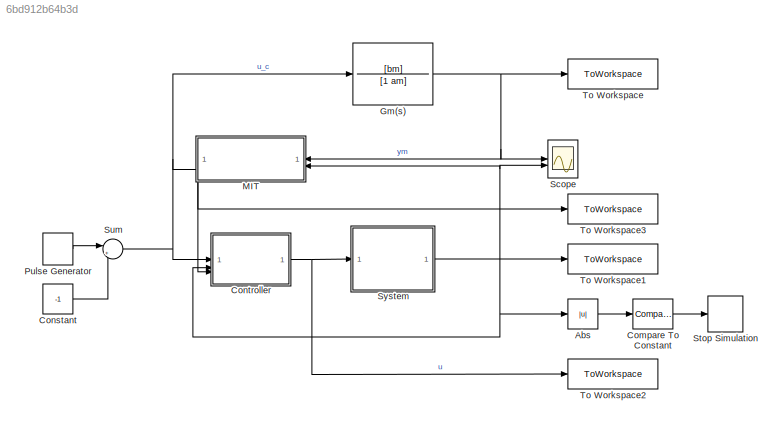
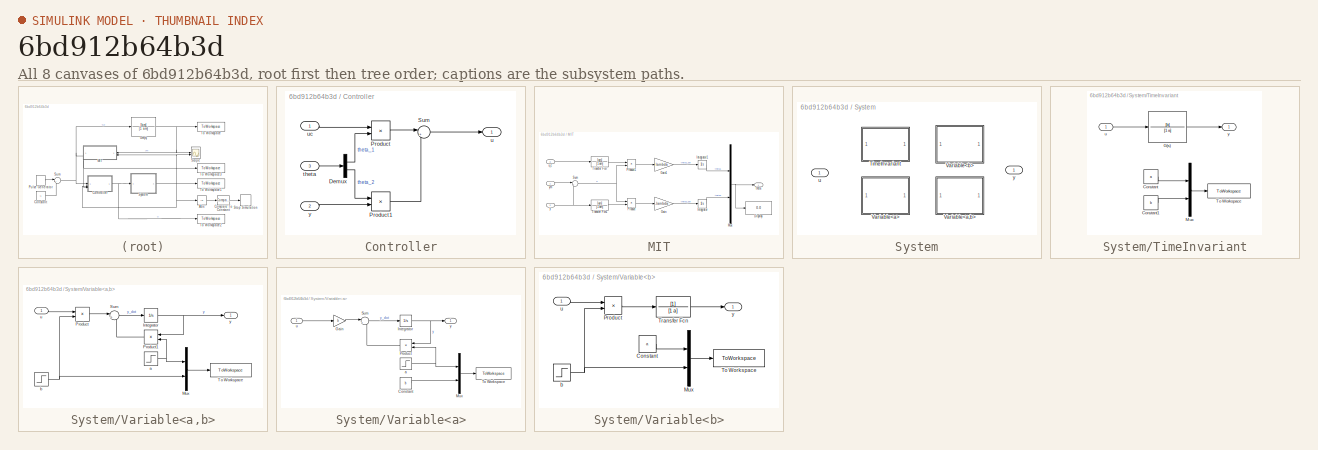
[diagram: thumbnail index - all 8 canvases of the model, root first then tree order]
MODEL slx_6bd912b64b3d
KIND model
CONFIG AbsTol = auto
CONFIG EnableMultiTasking = off
CONFIG FixedStep = sample_time
CONFIG MaxStep = auto
CONFIG MinStep = auto
CONFIG RelTol = 1e-3
CONFIG SampleTimeConstraint = Unconstrained
CONFIG SolverName = FixedStepAuto
CONFIG StartTime = start_time
CONFIG StopTime = stop_time
BLOCK [Abs] Abs
  SaturateOnIntegerOverflow = off
BLOCK [Reference] Compare To Constant  REF=simulink/Logic and Bit
Operations/Compare
To Constant
  SourceBlock = simulink/Logic and Bit\nOperations/Compare\nTo Constant
  SourceType = Compare To Constant
BLOCK [Constant] Constant
  Value = -1
BLOCK [SubSystem] Controller
  PortSchema = {"entries":[{"content":{"sides":[{"content":{"connectorIds":["In1","In2"]},"type":"ConnectorPlacement.EquallySpacedRectSide","uuid":"d022c748-101c-4660-a3ab-3ab175440250"},{"content":{"connectorIds":["Out1"],"side":"RIGHT"},"type":"ConnectorPlacement.EquallySpacedRectSide","uuid":"095f090d-91cf-42c9-9b75-572471a2012a"},{"content":{"connectorIds":["In3"],"side":"TOP"},"type":"ConnectorPlacement.Equ...<+251ch>
BLOCK [Demux] Controller/Demux
  Outputs = 2
BLOCK [Product] Controller/Product
BLOCK [Product] Controller/Product1
BLOCK [Sum] Controller/Sum
  Inputs = |+-
BLOCK [Inport] Controller/theta
  Port = 3
BLOCK [Outport] Controller/u
BLOCK [Inport] Controller/uc
BLOCK [Inport] Controller/y
  Port = 2
BLOCK [TransferFcn] Gm(s)
  Denominator = [1 am]
  Numerator = [bm]
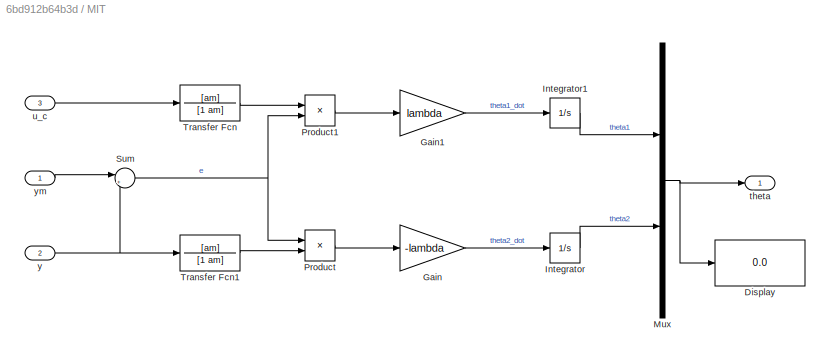
BLOCK [SubSystem] MIT
  NameLocation = top
  PortSchema = {"entries":[{"content":{"sides":[{"content":{"connectorIds":["In1","In2"]},"type":"ConnectorPlacement.EquallySpacedRectSide","uuid":"b0e139f4-a3e5-4429-8b9f-fb5f46f8f8e3"},{"content":{"connectorIds":["In3"],"side":"RIGHT"},"type":"ConnectorPlacement.EquallySpacedRectSide","uuid":"e3848565-b04e-4aec-b58f-f857d7acf1b5"},{"content":{"side":"TOP"},"type":"ConnectorPlacement.EquallySpacedRectSide","uui...<+377ch>
BLOCK [Display] MIT/Display
  Decimation = 1
BLOCK [Gain] MIT/Gain
  Gain = -lambda
BLOCK [Gain] MIT/Gain1
  Gain = lambda
BLOCK [Integrator] MIT/Integrator
BLOCK [Integrator] MIT/Integrator1
BLOCK [Mux] MIT/Mux
  DisplayOption = bar
  Inputs = 2
BLOCK [Product] MIT/Product
BLOCK [Product] MIT/Product1
BLOCK [Sum] MIT/Sum
  Inputs = |+-
BLOCK [TransferFcn] MIT/Transfer Fcn
  Denominator = [1 am]
  Numerator = [am]
BLOCK [TransferFcn] MIT/Transfer Fcn1
  Denominator = [1 am]
  Numerator = [am]
BLOCK [Outport] MIT/theta
BLOCK [Inport] MIT/u_c
  Port = 3
BLOCK [Inport] MIT/y
  Port = 2
BLOCK [Inport] MIT/ym
BLOCK [DiscretePulseGenerator] Pulse Generator
  Amplitude = 2
  Period = 20
  PulseType = Time based
  PulseWidth = 50
BLOCK [Scope] Scope
  Floating = off
  NumInputPorts = 2
  ScopeSpecificationString = Simulink.scopes.TimeScopeBlockCfg('CurrentConfiguration', extmgr.ConfigurationSet(extmgr.Configuration('Core','General UI',true),extmgr.Configuration('Core','Source UI',true),extmgr.Configuration('Sources','WiredSimulink',true),extmgr.Configuration('Visuals','Time Domain',true,'SerializedDisplays',{struct('MinYLimReal','-1.25','MaxYLimReal','1.25','YLabelReal','','MinYLimMag','0.00000','MaxYLimMag...<+1359ch>
BLOCK [Stop] Stop Simulation
BLOCK [Sum] Sum
  Inputs = |++
BLOCK [SubSystem] System
  LabelModeActiveChoice = Invariant
  Variant = on
  VariantControl = Choice
  VariantControlMode = label
BLOCK [SubSystem] System/TimeInvariant
  VariantControl = Invariant
BLOCK [Constant] System/TimeInvariant/Constant
  Value = a
BLOCK [Constant] System/TimeInvariant/Constant1
  Value = b
BLOCK [TransferFcn] System/TimeInvariant/G(s)
  Denominator = [1 a]
  Numerator = [b]
BLOCK [Mux] System/TimeInvariant/Mux
  DisplayOption = bar
  Inputs = 2
BLOCK [ToWorkspace] System/TimeInvariant/To Workspace
  FixptAsFi = on
  MaxDataPoints = inf
  SampleTime = -1
  SaveFormat = Timeseries
  VariableName = Param
BLOCK [Inport] System/TimeInvariant/u
BLOCK [Outport] System/TimeInvariant/y
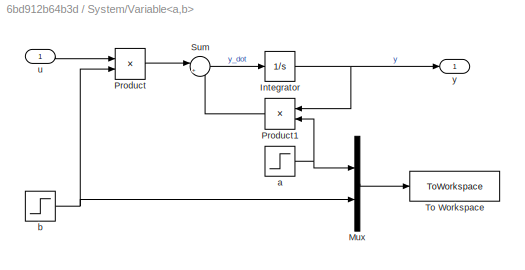
BLOCK [SubSystem] System/Variable<a,b>
  VariantControl = Variable_a_b
BLOCK [Integrator] System/Variable<a,b>/Integrator
BLOCK [Mux] System/Variable<a,b>/Mux
  DisplayOption = bar
  Inputs = 2
BLOCK [Product] System/Variable<a,b>/Product
BLOCK [Product] System/Variable<a,b>/Product1
  NameLocation = top
BLOCK [Sum] System/Variable<a,b>/Sum
  Inputs = |+-
BLOCK [ToWorkspace] System/Variable<a,b>/To Workspace
  FixptAsFi = on
  MaxDataPoints = inf
  SampleTime = -1
  SaveFormat = Timeseries
  VariableName = Param
BLOCK [Step] System/Variable<a,b>/a
  After = 2
  Before = 1
  SampleTime = 0
  Time = stop_time/2
BLOCK [Step] System/Variable<a,b>/b
  After = -0.5
  Before = 0.5
  SampleTime = 0
  Time = stop_time/2
BLOCK [Inport] System/Variable<a,b>/u
BLOCK [Outport] System/Variable<a,b>/y
BLOCK [SubSystem] System/Variable<a>
  VariantControl = Variable_a
BLOCK [Constant] System/Variable<a>/Constant
  Value = b
BLOCK [Gain] System/Variable<a>/Gain
  Gain = b
BLOCK [Integrator] System/Variable<a>/Integrator
BLOCK [Mux] System/Variable<a>/Mux
  DisplayOption = bar
  Inputs = 2
BLOCK [Product] System/Variable<a>/Product
  NameLocation = top
BLOCK [Sum] System/Variable<a>/Sum
  Inputs = |+-
BLOCK [ToWorkspace] System/Variable<a>/To Workspace
  FixptAsFi = on
  MaxDataPoints = inf
  SampleTime = -1
  SaveFormat = Timeseries
  VariableName = Param
BLOCK [Step] System/Variable<a>/a
  After = 2
  Before = 1
  SampleTime = 0
  Time = stop_time/2
BLOCK [Inport] System/Variable<a>/u
BLOCK [Outport] System/Variable<a>/y
BLOCK [SubSystem] System/Variable<b>
  VariantControl = Variable_b
BLOCK [Constant] System/Variable<b>/Constant
  Value = a
BLOCK [Mux] System/Variable<b>/Mux
  DisplayOption = bar
  Inputs = 2
BLOCK [Product] System/Variable<b>/Product
BLOCK [ToWorkspace] System/Variable<b>/To Workspace
  FixptAsFi = on
  MaxDataPoints = inf
  SampleTime = -1
  SaveFormat = Timeseries
  VariableName = Param
BLOCK [TransferFcn] System/Variable<b>/Transfer Fcn
  Denominator = [1 a]
BLOCK [Step] System/Variable<b>/b
  After = -0.5
  Before = 0.5
  SampleTime = 0
  Time = stop_time/2
BLOCK [Inport] System/Variable<b>/u
BLOCK [Outport] System/Variable<b>/y
BLOCK [Inport] System/u
BLOCK [Outport] System/y
BLOCK [ToWorkspace] To Workspace
  FixptAsFi = on
  MaxDataPoints = inf
  SampleTime = -1
  SaveFormat = Timeseries
  VariableName = Ym
BLOCK [ToWorkspace] To Workspace1
  FixptAsFi = on
  MaxDataPoints = inf
  SampleTime = -1
  SaveFormat = Timeseries
  VariableName = Y
BLOCK [ToWorkspace] To Workspace2
  FixptAsFi = on
  MaxDataPoints = inf
  SampleTime = -1
  SaveFormat = Timeseries
  VariableName = U
BLOCK [ToWorkspace] To Workspace3
  FixptAsFi = on
  MaxDataPoints = inf
  SampleTime = -1
  SaveFormat = Timeseries
  VariableName = Theta
LINE Abs:1 -> Compare To Constant:1
LINE Compare To Constant:1 -> Stop Simulation:1
LINE Constant:1 -> Sum:2
LINE Controller/Demux:1 -> Controller/Product:2
LINE Controller/Demux:2 -> Controller/Product1:1
LINE Controller/Product1:1 -> Controller/Sum:2
LINE Controller/Product:1 -> Controller/Sum:1
LINE Controller/Sum:1 -> Controller/u:1
LINE Controller/theta:1 -> Controller/Demux:1
LINE Controller/uc:1 -> Controller/Product:1
LINE Controller/y:1 -> Controller/Product1:2
NET Controller:1 -> System:1, To Workspace2:1
NET Gm(s):1 -> MIT:1, Scope:1, To Workspace:1
LINE MIT/Gain1:1 -> MIT/Integrator1:1
LINE MIT/Gain:1 -> MIT/Integrator:1
LINE MIT/Integrator1:1 -> MIT/Mux:1
LINE MIT/Integrator:1 -> MIT/Mux:2
NET MIT/Mux:1 -> MIT/Display:1, MIT/theta:1
LINE MIT/Product1:1 -> MIT/Gain1:1
LINE MIT/Product:1 -> MIT/Gain:1
NET MIT/Sum:1 -> MIT/Product1:2, MIT/Product:1
LINE MIT/Transfer Fcn1:1 -> MIT/Product:2
LINE MIT/Transfer Fcn:1 -> MIT/Product1:1
LINE MIT/u_c:1 -> MIT/Transfer Fcn:1
NET MIT/y:1 -> MIT/Sum:2, MIT/Transfer Fcn1:1
LINE MIT/ym:1 -> MIT/Sum:1
NET MIT:1 -> Controller:3, To Workspace3:1
LINE Pulse Generator:1 -> Sum:1
NET Sum:1 -> Controller:1, Gm(s):1, MIT:3
LINE System/TimeInvariant/Constant1:1 -> System/TimeInvariant/Mux:2
LINE System/TimeInvariant/Constant:1 -> System/TimeInvariant/Mux:1
LINE System/TimeInvariant/G(s):1 -> System/TimeInvariant/y:1
LINE System/TimeInvariant/Mux:1 -> System/TimeInvariant/To Workspace:1
LINE System/TimeInvariant/u:1 -> System/TimeInvariant/G(s):1
NET System/Variable<a,b>/Integrator:1 -> System/Variable<a,b>/Product1:1, System/Variable<a,b>/y:1
LINE System/Variable<a,b>/Mux:1 -> System/Variable<a,b>/To Workspace:1
LINE System/Variable<a,b>/Product1:1 -> System/Variable<a,b>/Sum:2
LINE System/Variable<a,b>/Product:1 -> System/Variable<a,b>/Sum:1
LINE System/Variable<a,b>/Sum:1 -> System/Variable<a,b>/Integrator:1
NET System/Variable<a,b>/a:1 -> System/Variable<a,b>/Mux:1, System/Variable<a,b>/Product1:2
NET System/Variable<a,b>/b:1 -> System/Variable<a,b>/Mux:2, System/Variable<a,b>/Product:2
LINE System/Variable<a,b>/u:1 -> System/Variable<a,b>/Product:1
LINE System/Variable<a>/Constant:1 -> System/Variable<a>/Mux:2
LINE System/Variable<a>/Gain:1 -> System/Variable<a>/Sum:1
NET System/Variable<a>/Integrator:1 -> System/Variable<a>/Product:1, System/Variable<a>/y:1
LINE System/Variable<a>/Mux:1 -> System/Variable<a>/To Workspace:1
LINE System/Variable<a>/Product:1 -> System/Variable<a>/Sum:2
LINE System/Variable<a>/Sum:1 -> System/Variable<a>/Integrator:1
NET System/Variable<a>/a:1 -> System/Variable<a>/Mux:1, System/Variable<a>/Product:2
LINE System/Variable<a>/u:1 -> System/Variable<a>/Gain:1
LINE System/Variable<b>/Constant:1 -> System/Variable<b>/Mux:1
LINE System/Variable<b>/Mux:1 -> System/Variable<b>/To Workspace:1
LINE System/Variable<b>/Product:1 -> System/Variable<b>/Transfer Fcn:1
LINE System/Variable<b>/Transfer Fcn:1 -> System/Variable<b>/y:1
NET System/Variable<b>/b:1 -> System/Variable<b>/Mux:2, System/Variable<b>/Product:2
LINE System/Variable<b>/u:1 -> System/Variable<b>/Product:1
NET System:1 -> Abs:1, Controller:2, MIT:2, Scope:2, To Workspace1:1
note: NET lines group one-source signal fan-out (src -> all destinations, sorted); 1:1 wires keep LINE
